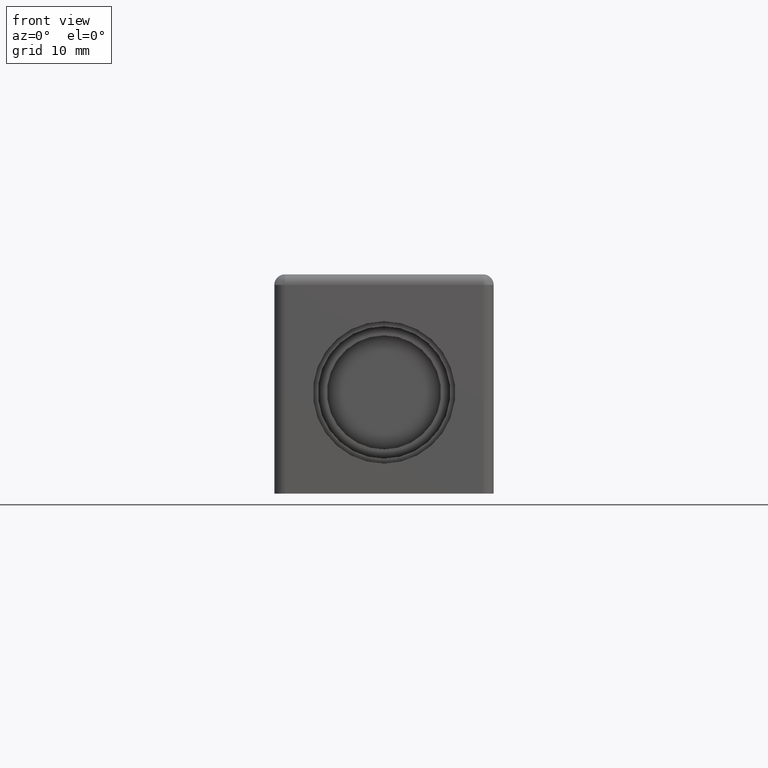
[diagram: clean part render]
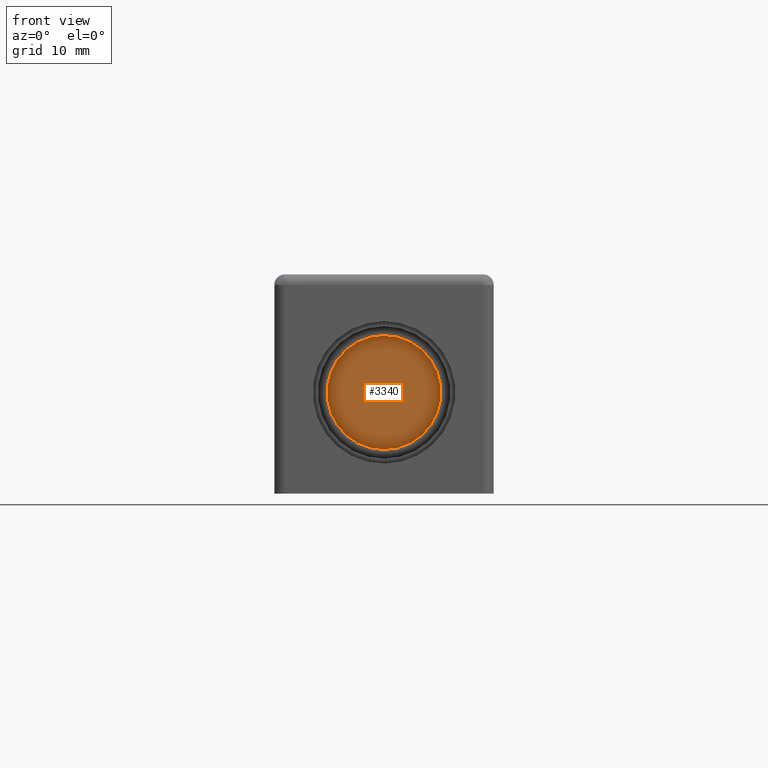
[diagram: same view with one face highlighted and labeled with its STEP entity id]
A machine part, front view. The second image highlights one B-rep face of the part: STEP entity #3340.
In plain terms, the highlighted planar face has unit normal (0, 1, 0).
Its self-contained STEP definition (entity closure, byte-faithful):
#102=CARTESIAN_POINT('',(9.796851E-016,-42.500000000000014,-6.0));
#103=VERTEX_POINT('',#102);
#110=CARTESIAN_POINT('',(0.0,-42.500000000000014,10.0));
#111=VERTEX_POINT('',#110);
#112=CARTESIAN_POINT('',(0.0,-42.500000000000014,2.0));
#113=DIRECTION('',(0.0,1.0,0.0));
#114=DIRECTION('',(0.0,0.0,1.0));
#115=AXIS2_PLACEMENT_3D('',#112,#113,#114);
#116=CIRCLE('',#115,8.0);
#117=EDGE_CURVE('',#103,#111,#116,.T.);
#3321=CARTESIAN_POINT('',(0.0,-42.500000000000014,2.0));
#3322=DIRECTION('',(0.0,1.0,0.0));
#3323=DIRECTION('',(0.0,0.0,1.0));
#3324=AXIS2_PLACEMENT_3D('',#3321,#3322,#3323);
#3325=CIRCLE('',#3324,8.0);
#3326=EDGE_CURVE('',#111,#103,#3325,.T.);
#3331=CARTESIAN_POINT('',(-8.800000000000001,-42.500000000000014,-6.800000000000001));
#3332=DIRECTION('',(0.0,1.0,0.0));
#3333=DIRECTION('',(0.0,0.0,1.0));
#3334=AXIS2_PLACEMENT_3D('',#3331,#3332,#3333);
#3335=PLANE('',#3334);
#3336=ORIENTED_EDGE('',*,*,#3326,.F.);
#3337=ORIENTED_EDGE('',*,*,#117,.F.);
#3338=EDGE_LOOP('',(#3336,#3337));
#3339=FACE_OUTER_BOUND('',#3338,.T.);
#3340=ADVANCED_FACE('',(#3339),#3335,.F.);